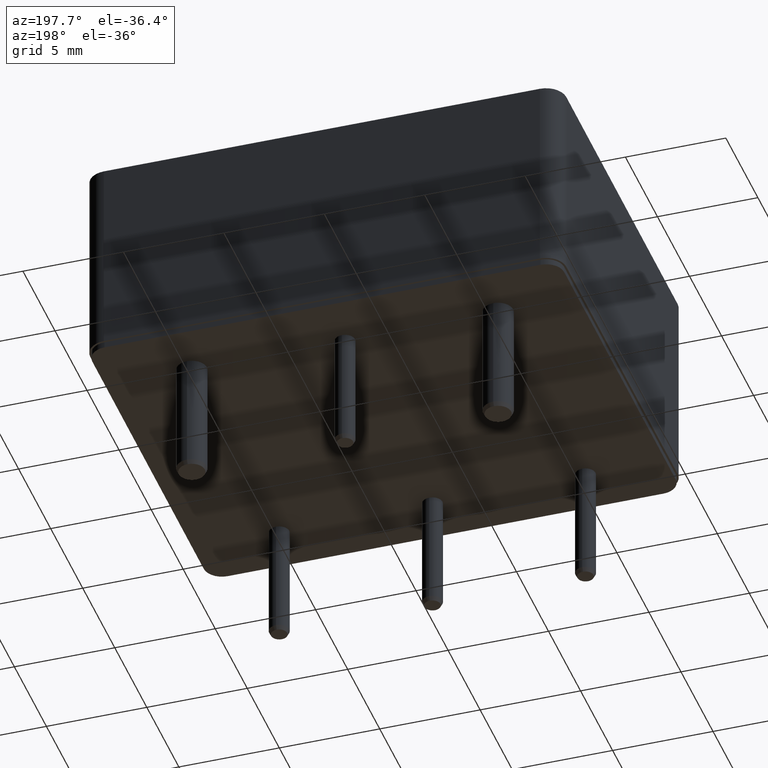
[diagram: clean part render]
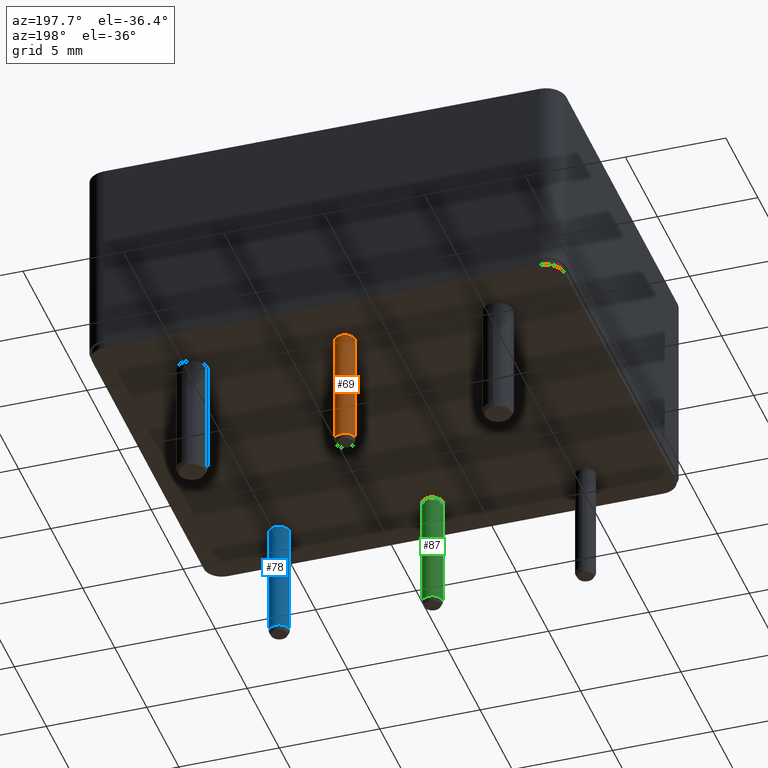
[diagram: same view with three faces highlighted in distinct colors, each labeled with its STEP entity id]
A machine part, auxiliary view with three faces highlighted in distinct colors.
Their STEP definitions:

[orange] entity #69 — the highlighted cylindrical surface (bore or boss wall) has radius 0.5 mm, axis along (0, 0, -1).
#69=ADVANCED_FACE('',(#454,#456),#458,.T.);
#454=FACE_OUTER_BOUND('',#455,.T.);
#455=EDGE_LOOP('',(#768));
#456=FACE_OUTER_BOUND('',#457,.T.);
#457=EDGE_LOOP('',(#769));
#458=CYLINDRICAL_SURFACE('',#459,0.5);
#459=AXIS2_PLACEMENT_3D('',#460,#461,#462);
#460=CARTESIAN_POINT('',(-0.17,6.61,-2.0818995585505E-17));
#461=DIRECTION('',(1.22464679914735E-16,0.,-1.));
#462=DIRECTION('',(-6.12323399573677E-17,1.,-7.49879891330928E-33));
#768=ORIENTED_EDGE('',*,*,#896,.T.);
#769=ORIENTED_EDGE('',*,*,#899,.F.);
#896=EDGE_CURVE('',#974,#974,#975,.T.);
#899=EDGE_CURVE('',#980,#980,#981,.T.);
#974=VERTEX_POINT('',#1122);
#975=CIRCLE('',#1123,0.5);
#980=VERTEX_POINT('',#1137);
#981=CIRCLE('',#1138,0.5);
#1122=CARTESIAN_POINT('',(-0.17,7.11,-2.0818995585505E-17));
#1123=AXIS2_PLACEMENT_3D('',#1124,#1125,#1126);
#1124=CARTESIAN_POINT('',(-0.17,6.61,-2.0818995585505E-17));
#1125=DIRECTION('',(1.22464679914735E-16,0.,-1.));
#1126=DIRECTION('',(-5.55111512312578E-17,1.,-6.79815536723444E-33));
#1137=CARTESIAN_POINT('',(-0.169999999999999,7.11,-5.8));
#1138=AXIS2_PLACEMENT_3D('',#1139,#1140,#1141);
#1139=CARTESIAN_POINT('',(-0.169999999999999,6.61,-5.8));
#1140=DIRECTION('',(1.22464679914735E-16,0.,-1.));
#1141=DIRECTION('',(3.00440511060728E-16,1.,3.67933510204715E-32));

[blue] entity #78 — the highlighted cylindrical surface (bore or boss wall) has radius 0.5 mm, axis along (0, 0, -1).
#78=ADVANCED_FACE('',(#463,#465),#467,.T.);
#463=FACE_OUTER_BOUND('',#464,.T.);
#464=EDGE_LOOP('',(#770));
#465=FACE_OUTER_BOUND('',#466,.T.);
#466=EDGE_LOOP('',(#771));
#467=CYLINDRICAL_SURFACE('',#468,0.5);
#468=AXIS2_PLACEMENT_3D('',#469,#470,#471);
#469=CARTESIAN_POINT('',(7.46,-7.03,9.13586512163925E-16));
#470=DIRECTION('',(1.22464679914735E-16,0.,-1.));
#471=DIRECTION('',(-6.12323399573677E-17,1.,-7.49879891330928E-33));
#770=ORIENTED_EDGE('',*,*,#895,.T.);
#771=ORIENTED_EDGE('',*,*,#900,.F.);
#895=EDGE_CURVE('',#972,#972,#973,.T.);
#900=EDGE_CURVE('',#982,#982,#983,.T.);
#972=VERTEX_POINT('',#1117);
#973=CIRCLE('',#1118,0.5);
#982=VERTEX_POINT('',#1142);
#983=CIRCLE('',#1143,0.5);
#1117=CARTESIAN_POINT('',(7.46,-6.53,9.13586512163924E-16));
#1118=AXIS2_PLACEMENT_3D('',#1119,#1120,#1121);
#1119=CARTESIAN_POINT('',(7.46,-7.03,9.13586512163923E-16));
#1120=DIRECTION('',(1.22464679914735E-16,0.,-1.));
#1121=DIRECTION('',(0.,1.,0.));
#1142=CARTESIAN_POINT('',(7.46,-6.53,-5.8));
#1143=AXIS2_PLACEMENT_3D('',#1144,#1145,#1146);
#1144=CARTESIAN_POINT('',(7.46,-7.03,-5.8));
#1145=DIRECTION('',(1.22464679914735E-16,0.,-1.));
#1146=DIRECTION('',(2.44929359829471E-16,1.,2.99951956532371E-32));

[green] entity #87 — the highlighted cylindrical surface (bore or boss wall) has radius 0.5 mm, axis along (0, 0, -1).
#87=ADVANCED_FACE('',(#472,#474),#476,.T.);
#472=FACE_OUTER_BOUND('',#473,.T.);
#473=EDGE_LOOP('',(#772));
#474=FACE_OUTER_BOUND('',#475,.T.);
#475=EDGE_LOOP('',(#773));
#476=CYLINDRICAL_SURFACE('',#477,0.5);
#477=AXIS2_PLACEMENT_3D('',#478,#479,#480);
#478=CARTESIAN_POINT('',(-0.169999999999999,-7.03,-2.08189955855049E-17));
#479=DIRECTION('',(1.22464679914735E-16,0.,-1.));
#480=DIRECTION('',(-6.12323399573677E-17,1.,-7.49879891330928E-33));
#772=ORIENTED_EDGE('',*,*,#894,.T.);
#773=ORIENTED_EDGE('',*,*,#901,.F.);
#894=EDGE_CURVE('',#970,#970,#971,.T.);
#901=EDGE_CURVE('',#984,#984,#985,.T.);
#970=VERTEX_POINT('',#1112);
#971=CIRCLE('',#1113,0.5);
#984=VERTEX_POINT('',#1147);
#985=CIRCLE('',#1148,0.5);
#1112=CARTESIAN_POINT('',(-0.169999999999999,-6.53,-2.08189955855049E-17));
#1113=AXIS2_PLACEMENT_3D('',#1114,#1115,#1116);
#1114=CARTESIAN_POINT('',(-0.169999999999999,-7.03,-2.08189955855048E-17));
#1115=DIRECTION('',(1.22464679914735E-16,0.,-1.));
#1116=DIRECTION('',(-5.55111512312578E-17,1.,-6.79815536723444E-33));
#1147=CARTESIAN_POINT('',(-0.169999999999998,-6.53,-5.8));
#1148=AXIS2_PLACEMENT_3D('',#1149,#1150,#1151);
#1149=CARTESIAN_POINT('',(-0.169999999999998,-7.03,-5.8));
#1150=DIRECTION('',(1.22464679914735E-16,0.,-1.));
#1151=DIRECTION('',(2.44929359829471E-16,1.,2.99951956532371E-32));